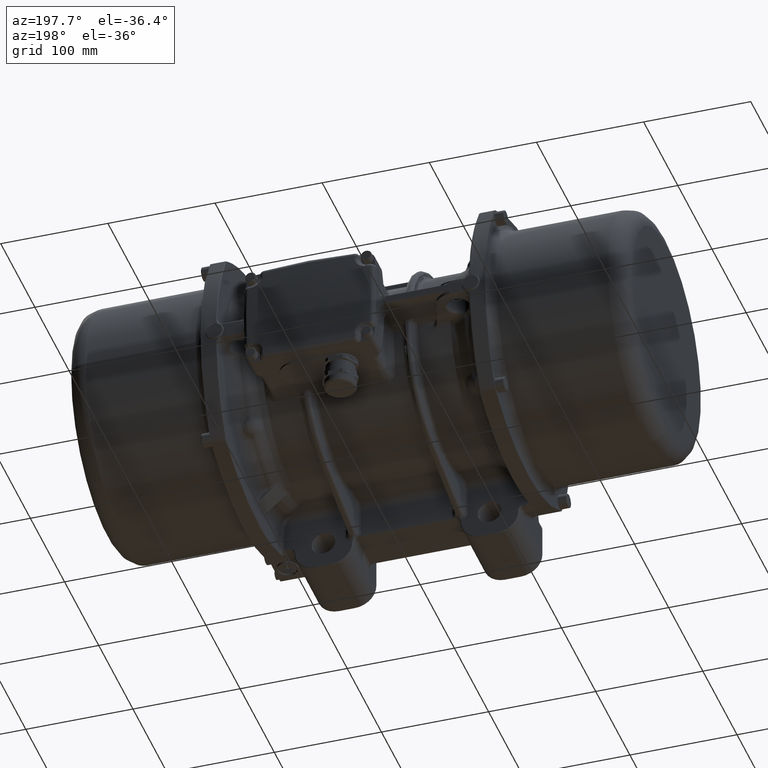
[diagram: clean part render]
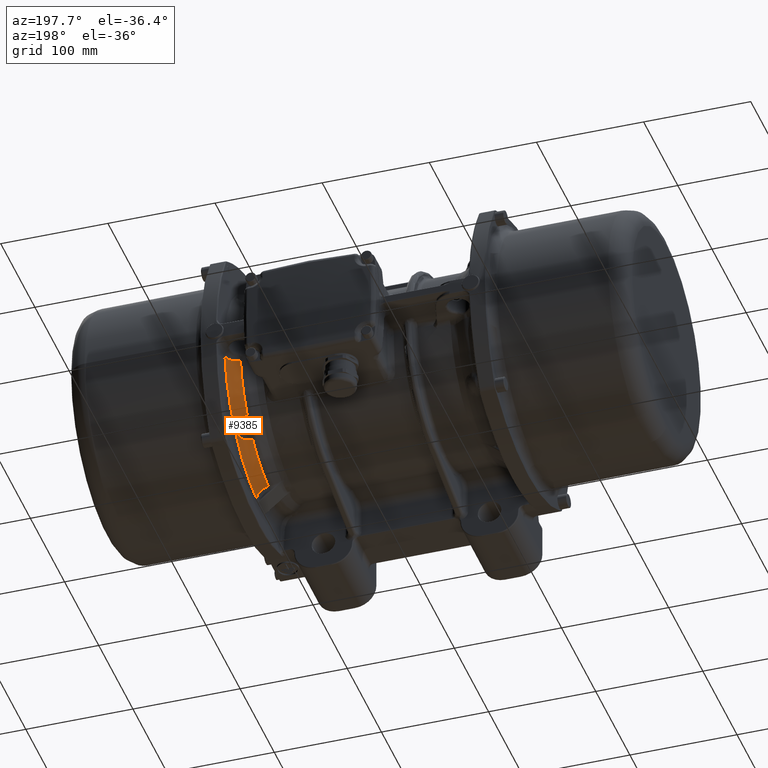
[diagram: same view with one face highlighted and labeled with its STEP entity id]
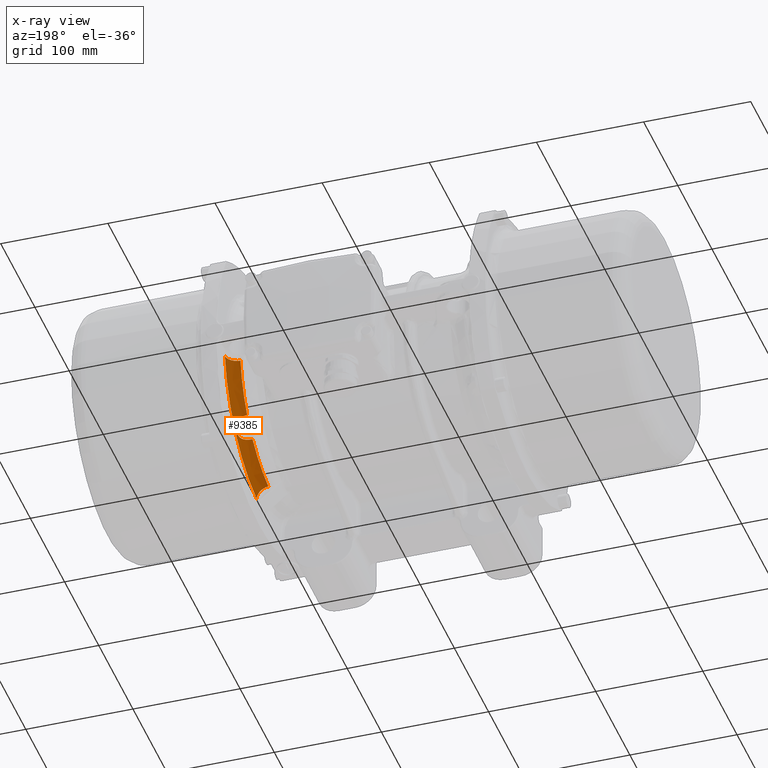
[diagram: x-ray of the same camera — body ghosted, the highlighted face saturated]
A machine part, auxiliary view. The second image highlights one B-rep face of the part: STEP entity #9385.
The next image is the same camera in x-ray: the body ghosted, the highlighted face saturated — about 0% of this face is hidden behind the body in this view.
In plain terms, the highlighted face is a freeform B-spline surface patch.
Its self-contained STEP definition (entity closure, byte-faithful):
#10 = CARTESIAN_POINT ( 'NONE',  ( 115.0456479404417700, 66.46062155296608900, -76.08826538670541600 ) ) ;
#258 = VERTEX_POINT ( 'NONE', #9233 ) ;
#457 = CARTESIAN_POINT ( 'NONE',  ( 115.9040696782029700, 75.30586149153745600, -70.07953721780532400 ) ) ;
#498 = CARTESIAN_POINT ( 'NONE',  ( 109.0507356617930000, 94.98679224000314000, -12.75717309216244300 ) ) ;
#907 = CARTESIAN_POINT ( 'NONE',  ( 114.4998661867531000, 76.09871464139669700, -65.12945061224995400 ) ) ;
#1000 = CARTESIAN_POINT ( 'NONE',  ( 112.9029520489821900, 12.71849838851724700, -97.47332232148070800 ) ) ;
#1030 = DIRECTION ( 'NONE',  ( 1.000000000000000000, -3.426983195025550000E-016, 3.449907649820270100E-016 ) ) ;
#1349 = CARTESIAN_POINT ( 'NONE',  ( 115.8159773696523900, 75.51223875635831500, -69.51453560806702100 ) ) ;
#1451 = CARTESIAN_POINT ( 'NONE',  ( 114.8485418307777300, 12.79970167566157200, -99.87997695500462200 ) ) ;
#1797 = CARTESIAN_POINT ( 'NONE',  ( 116.1286846105966800, 72.68183438664047500, -73.74755219628592300 ) ) ;
#1894 = CARTESIAN_POINT ( 'NONE',  ( 111.9064745477462400, 12.68849362960470900, -96.60101741402567700 ) ) ;
#2250 = CARTESIAN_POINT ( 'NONE',  ( 115.4845978186283400, 75.91837939330383700, -67.92162117050378400 ) ) ;
#2354 = CARTESIAN_POINT ( 'NONE',  ( 112.8011660623265400, 12.71523041802401700, -97.37743975008069700 ) ) ;
#3149 = CARTESIAN_POINT ( 'NONE',  ( 108.5661921338516400, 74.88426691733415900, -59.48584111913967800 ) ) ;
#3589 = CARTESIAN_POINT ( 'NONE',  ( 112.4445840359870100, 75.67944898417688600, -62.08229150764371000 ) ) ;
#3871 = CARTESIAN_POINT ( 'NONE',  ( 116.6169451523981000, 12.79673946402433200, -105.5014824129227700 ) ) ;
#4351 = CARTESIAN_POINT ( 'NONE',  ( 116.3517142660000300, 59.36961864100003100, -94.14424282999999600 ) ) ;
#5717 = CARTESIAN_POINT ( 'NONE',  ( 105.7689292740000000, 94.38267409899999900, -11.27281973399999900 ) ) ;
#7155 = CARTESIAN_POINT ( 'NONE',  ( 107.8305861490124000, 74.79846439196440100, -59.26712605697180400 ) ) ;
#8653 = CARTESIAN_POINT ( 'NONE',  ( 115.9107410099867400, 101.9913072709973400, -13.23260908792839700 ) ) ;
#8730 = CARTESIAN_POINT ( 'NONE',  ( 113.7364512477581300, 63.73093005205965500, -75.98192202396491300 ) ) ;
#9186 = CARTESIAN_POINT ( 'NONE',  ( 113.2391825537287800, 63.02468370926283800, -75.87024103704116800 ) ) ;
#9233 = CARTESIAN_POINT ( 'NONE',  ( 105.7689292740000000, 94.20100722612170300, -12.70180587100849900 ) ) ;
#9385 = ADVANCED_FACE ( 'NONE', ( #114690 ), #74656, .T. ) ;
#9627 = CARTESIAN_POINT ( 'NONE',  ( 111.6311279692499500, 61.31416971394009600, -75.48402992872522100 ) ) ;
#10341 = EDGE_CURVE ( 'NONE', #53316, #48273, #83132, .T. ) ;
#10458 = CARTESIAN_POINT ( 'NONE',  ( 115.6045230099685900, 101.2747133235855600, -13.18531699424875800 ) ) ;
#10537 = CARTESIAN_POINT ( 'NONE',  ( 115.2284033146832100, 67.01478379875706500, -76.04307589578520800 ) ) ;
#10982 = CARTESIAN_POINT ( 'NONE',  ( 116.0400102507984500, 71.26096751038066700, -74.73175961701545600 ) ) ;
#11414 = CARTESIAN_POINT ( 'NONE',  ( 116.1353157096312000, 72.96591495716712900, -73.49767353425228600 ) ) ;
#11515 = CARTESIAN_POINT ( 'NONE',  ( 109.7604735408195300, 12.64318762108856700, -95.31204990280504300 ) ) ;
#11856 = CARTESIAN_POINT ( 'NONE',  ( 116.0830747273647000, 71.76248018987408300, -74.43588583644491100 ) ) ;
#11966 = CARTESIAN_POINT ( 'NONE',  ( 115.5275435704971200, 101.1034935440168400, -13.17398092070036200 ) ) ;
#12126 = ORIENTED_EDGE ( 'NONE', *, *, #15796, .T. ) ;
#12323 = CARTESIAN_POINT ( 'NONE',  ( 113.0649028377313800, 75.82997643362097100, -62.78956955020834100 ) ) ;
#12787 = CARTESIAN_POINT ( 'NONE',  ( 116.1369596379381300, 73.10232394645569800, -73.36980607156178300 ) ) ;
#12888 = CARTESIAN_POINT ( 'NONE',  ( 112.4847631750245500, 12.70551229194114900, -97.09381825067716000 ) ) ;
#13775 = ORIENTED_EDGE ( 'NONE', *, *, #111830, .T. ) ;
#15099 = CARTESIAN_POINT ( 'NONE',  ( 112.3140086165103900, 75.64763920665737400, -61.94707864010315000 ) ) ;
#15396 = CARTESIAN_POINT ( 'NONE',  ( 105.7689292740000400, 56.32029078299995500, -89.30882921299998100 ) ) ;
#15796 = EDGE_CURVE ( 'NONE', #258, #39061, #39989, .T. ) ;
#15858 = CARTESIAN_POINT ( 'NONE',  ( 116.3517142660000300, 99.49279894800001500, -11.88315967999999300 ) ) ;
#15986 = CARTESIAN_POINT ( 'NONE',  ( 106.4652670272087400, 58.94879362432980900, -74.65085818842111100 ) ) ;
#16486 = ORIENTED_EDGE ( 'NONE', *, *, #20843, .T. ) ;
#17101 = CARTESIAN_POINT ( 'NONE',  ( 107.8305861490210000, 59.26712605695300300, -74.79846439194059800 ) ) ;
#18016 = CARTESIAN_POINT ( 'NONE',  ( 113.2218681613910400, 97.76114947514159300, -12.94947126412294500 ) ) ;
#18936 = AXIS2_PLACEMENT_3D ( 'NONE', #35655, #46678, #96163 ) ;
#19353 = CARTESIAN_POINT ( 'NONE',  ( 114.3823470132309400, 64.88647542289982100, -76.08728628665043900 ) ) ;
#19812 = CARTESIAN_POINT ( 'NONE',  ( 115.7050082373861400, 68.90639802454445800, -75.69689747697053400 ) ) ;
#19929 = VERTEX_POINT ( 'NONE', #68713 ) ;
#20122 = CARTESIAN_POINT ( 'NONE',  ( 113.3351847184647000, 97.87896002483996900, -12.95752156351152700 ) ) ;
#20252 = CARTESIAN_POINT ( 'NONE',  ( 116.6257580498605900, 105.6215036488068100, -13.46689872205086000 ) ) ;
#20303 = CARTESIAN_POINT ( 'NONE',  ( 109.8791257106602200, 95.35244552997791300, -12.78286229953410000 ) ) ;
#20843 = EDGE_CURVE ( 'NONE', #48273, #96684, #39225, .T. ) ;
#21184 = CARTESIAN_POINT ( 'NONE',  ( 111.7007138484684800, 61.37373603418107800, -75.50041732586858200 ) ) ;
#21623 = CARTESIAN_POINT ( 'NONE',  ( 115.3078947955768700, 76.01356188830277500, -67.27765442717463900 ) ) ;
#21727 = CARTESIAN_POINT ( 'NONE',  ( 113.4125820381888300, 12.73590020952160500, -97.98523871333767900 ) ) ;
#22071 = CARTESIAN_POINT ( 'NONE',  ( 116.1034895586763400, 72.08227644742979100, -74.21878658058568600 ) ) ;
#22175 = CARTESIAN_POINT ( 'NONE',  ( 114.0184017612664000, 12.75916234879119800, -98.67094717046180100 ) ) ;
#22525 = CARTESIAN_POINT ( 'NONE',  ( 113.5131553980552900, 75.93238769291923500, -63.40512799882363700 ) ) ;
#22969 = CARTESIAN_POINT ( 'NONE',  ( 116.0291251572772400, 74.82590182227699000, -71.11359842260135600 ) ) ;
#23072 = CARTESIAN_POINT ( 'NONE',  ( 109.4153425367976100, 12.63769527229597100, -95.15667830998729900 ) ) ;
#23438 = CARTESIAN_POINT ( 'NONE',  ( 116.0698723068012300, 74.53359168809726000, -71.60156810839258400 ) ) ;
#23543 = CARTESIAN_POINT ( 'NONE',  ( 115.0518277114143000, 12.81098922606386600, -100.2200440173094100 ) ) ;
#23724 = CARTESIAN_POINT ( 'NONE',  ( 116.3563244846530400, 12.91884511466556900, -103.5731635406066400 ) ) ;
#24641 = ORIENTED_EDGE ( 'NONE', *, *, #116565, .F. ) ;
#25252 = CARTESIAN_POINT ( 'NONE',  ( 111.8365374023650000, 75.53263512453459300, -61.49319085929423800 ) ) ;
#26003 = CARTESIAN_POINT ( 'NONE',  ( 112.0235396609999700, 94.97102148000000500, -11.34309040600000200 ) ) ;
#27930 = CARTESIAN_POINT ( 'NONE',  ( 107.1583178358346900, 59.06724295588807600, -74.72004969615912300 ) ) ;
#28391 = CARTESIAN_POINT ( 'NONE',  ( 105.7689292740021900, 58.91350817186379600, -74.59466595998678400 ) ) ;
#29914 = CARTESIAN_POINT ( 'NONE',  ( 113.0028461962766800, 97.54240352522734300, -12.93448585692373600 ) ) ;
#30818 = CARTESIAN_POINT ( 'NONE',  ( 114.4438493133447600, 65.01203154947465600, -76.09370081247432400 ) ) ;
#30862 = CARTESIAN_POINT ( 'NONE',  ( 106.4573115351743000, 94.26618886185966100, -12.70642068115462000 ) ) ;
#31214 = CARTESIAN_POINT ( 'NONE',  ( 116.3276153632473500, 103.3965828959224800, -13.32503900526645800 ) ) ;
#31727 = CARTESIAN_POINT ( 'NONE',  ( 113.0078745969952600, 62.72788506149516500, -75.81571262860788400 ) ) ;
#31765 = CARTESIAN_POINT ( 'NONE',  ( 109.4722441670434300, 95.16387790401022100, -12.76963580214426000 ) ) ;
#31830 = CARTESIAN_POINT ( 'NONE',  ( 109.3183448512002500, 12.63621588623633400, -95.11499643722555700 ) ) ;
#32171 = CARTESIAN_POINT ( 'NONE',  ( 115.5295766123950900, 75.88451203022039200, -68.10380367085255700 ) ) ;
#32271 = CARTESIAN_POINT ( 'NONE',  ( 112.4092689090385400, 12.70327555940107600, -97.02894738893013500 ) ) ;
#32605 = CARTESIAN_POINT ( 'NONE',  ( 115.3743934227063200, 75.98352403965208200, -67.50867925239411700 ) ) ;
#32619 = CARTESIAN_POINT ( 'NONE',  ( 113.2801233700984900, 97.82137108371992400, -12.95358794925820000 ) ) ;
#32712 = CARTESIAN_POINT ( 'NONE',  ( 115.1621384176689700, 12.81758014503848700, -100.4191544184815700 ) ) ;
#33056 = CARTESIAN_POINT ( 'NONE',  ( 116.1236974356189900, 72.53527995079720400, -73.86844604917394000 ) ) ;
#33524 = CARTESIAN_POINT ( 'NONE',  ( 115.7311565911732500, 69.04015691353268400, -75.65995820462693200 ) ) ;
#33621 = CARTESIAN_POINT ( 'NONE',  ( 109.3332417076720400, 12.63644149107896600, -95.12134783922556400 ) ) ;
#33803 = CARTESIAN_POINT ( 'NONE',  ( 116.2344376878094000, 12.90429581700630000, -103.1128774080502000 ) ) ;
#33977 = CARTESIAN_POINT ( 'NONE',  ( 115.7558101056249000, 69.17307313481313700, -75.62050430452340800 ) ) ;
#34596 = CARTESIAN_POINT ( 'NONE',  ( 107.8305861490210000, 59.26712605695300300, -74.79846439194059800 ) ) ;
#35347 = CARTESIAN_POINT ( 'NONE',  ( 112.0448483534000100, 75.58254778065688100, -61.68486588074299000 ) ) ;
#35655 = CARTESIAN_POINT ( 'NONE',  ( 105.7689292740000000, -3.785296728842090300E-010, -1.927746157148745100E-010 ) ) ;
#36087 = CARTESIAN_POINT ( 'NONE',  ( 116.6257580500000000, 11.92238120800000100, -105.8069762410000000 ) ) ;
#36538 = CARTESIAN_POINT ( 'NONE',  ( 116.6257580499999400, 99.61870566500003600, -63.75417448299997900 ) ) ;
#36646 = B_SPLINE_CURVE_WITH_KNOTS ( 'NONE', 3,
 ( #7155, #80606, #112235, #133759 ),
 .UNSPECIFIED., .F., .F.,
 ( 4, 4 ),
 ( 0.0000000000000000000, 1.000000000000000000 ),
 .UNSPECIFIED. ) ;
#36997 = CARTESIAN_POINT ( 'NONE',  ( 112.0235396610000200, 89.48572141499997200, -57.26924736400004400 ) ) ;
#39061 = VERTEX_POINT ( 'NONE', #20252 ) ;
#39225 = B_SPLINE_CURVE_WITH_KNOTS ( 'NONE', 3,
 ( #17101, #113783, #61533, #52355, #104651, #61983, #124339, #125223, #51012, #9627, #21184, #93665, #41372, #135314, #125692, #31727, #51459, #71604, #9186, #94113, #8730, #105102, #72488, #103311, #123889, #19353, #84011, #30818, #114699, #62897, #83566, #10, #73395, #92753, #10537, #134859, #51906, #42275, #72044, #82653, #62445, #104203, #19812, #33524, #33977, #84888, #94995, #43642, #117380, #65145, #86246, #106872, #52831, #10982, #116933, #63344, #11856, #22071, #33056, #1797, #11414, #12787, #85795, #63799, #115609, #127042, #127948, #64245, #23438, #74295, #22969, #75182, #53715, #457, #54632, #54170, #1349, #74739, #95425, #126143, #127491, #73857, #32171, #2250, #84442, #32605, #107322, #21623, #75654, #96805, #105533, #96339, #42740, #126585, #116045, #53269, #907, #105975, #43184, #64698, #44090, #116489, #85332, #22525, #95885, #106416, #12323, #107785, #3589, #15099, #77027, #35347, #129305, #25252, #88535, #45484, #55074, #3149, #88093 ),
 .UNSPECIFIED., .F., .F.,
 ( 4, 2, 2, 2, 2, 2, 2, 2, 2, 2, 2, 2, 1, 2, 2, 2, 2, 1, 1, 2, 2, 2, 2, 1, 2, 2, 2, 2, 1, 2, 2, 2, 2, 2, 2, 2, 2, 2, 2, 2, 1, 1, 2, 2, 2, 2, 1, 2, 2, 2, 2, 1, 2, 2, 2, 2, 2, 2, 2, 2, 2, 2, 2, 4 ),
 ( 0.0000000000000000000, 0.06250000000002019200, 0.09375000000003078100, 0.1093750000000364600, 0.1171875000000389700, 0.1250000000000414700, 0.1562500000000527100, 0.1718750000000578100, 0.1796875000000602000, 0.1875000000000625900, 0.2187500000000700000, 0.2343750000000740500, 0.2421875000000753600, 0.2460937500000754700, 0.2500000000000755500, 0.2812500000000814300, 0.2968750000000851500, 0.3046875000000869900, 0.3085937500000879900, 0.3105468750000880400, 0.3125000000000881500, 0.3437500000000965300, 0.3593750000001009700, 0.3671875000001026400, 0.3710937500001030300, 0.3750000000001033600, 0.4062500000001005300, 0.4218750000000986400, 0.4296875000000972600, 0.4335937500000973700, 0.4375000000000974200, 0.4687500000000954200, 0.4843750000000947600, 0.5000000000000940400, 0.5312500000000928100, 0.5468750000000925900, 0.5546875000000925900, 0.5625000000000925900, 0.5937500000000937000, 0.6093750000000940400, 0.6171875000000941500, 0.6210937500000940400, 0.6230468750000944800, 0.6250000000000949200, 0.6562500000000871500, 0.6718750000000837100, 0.6796875000000812700, 0.6835937500000804900, 0.6875000000000798300, 0.7187500000000720500, 0.7343750000000681700, 0.7421875000000657300, 0.7460937500000645000, 0.7500000000000632800, 0.7812500000000560700, 0.7968750000000525100, 0.8046875000000511800, 0.8125000000000497400, 0.8437500000000413000, 0.8593750000000376400, 0.8671875000000357500, 0.8750000000000337500, 0.9375000000000168800, 1.000000000000000000 ),
 .UNSPECIFIED. ) ;
#39907 = B_SPLINE_CURVE_WITH_KNOTS ( 'NONE', 3,
 ( #44385, #3871, #65886, #108063, #46187, #55363, #44835, #88366, #98467, #87459, #118131, #23724, #56718 ),
 .UNSPECIFIED., .F., .F.,
 ( 4, 2, 1, 1, 1, 2, 2, 4 ),
 ( 0.0000000000000000000, 0.2499999999999800700, 0.3749999999999694700, 0.4374999999999564200, 0.4687499999999499300, 0.4843749999999542000, 0.4999999999999585300, 1.000000000000000000 ),
 .UNSPECIFIED. ) ;
#39989 = B_SPLINE_CURVE_WITH_KNOTS ( 'NONE', 3,
 ( #63388, #30862, #114296, #113822, #51493, #498, #62481, #31765, #115651, #52872, #73892, #135791, #51049, #20303, #72978, #83599, #106599, #54801, #57510, #47433, #29914, #40488, #18016, #32619, #129317, #77518, #59142, #20122, #59492, #112207, #129498, #78586, #121203, #101998, #96448, #11966, #10458, #61918, #83042, #51396, #115540, #52285, #42203, #8653, #63277, #31214, #50933, #83487, #82580, #124268, #61456, #94046 ),
 .UNSPECIFIED., .F., .F.,
 ( 4, 2, 2, 2, 1, 1, 1, 2, 2, 2, 2, 2, 1, 1, 1, 1, 2, 2, 2, 2, 2, 1, 1, 1, 1, 1, 2, 2, 2, 2, 2, 4 ),
 ( 0.0000000000000000000, 0.1250000000002103000, 0.1875000000003166400, 0.2187500000003693700, 0.2343750000003941800, 0.2421875000004076500, 0.2460937500004128100, 0.2480468750004159200, 0.2500000000004190000, 0.3750000000004799500, 0.4375000000005104800, 0.4687500000005248600, 0.4843750000005319600, 0.4921875000005347400, 0.4960937500005345700, 0.4980468750005336300, 0.4990234375005339100, 0.5000000000005342400, 0.6250000000004166700, 0.6875000000003561600, 0.7187500000003245200, 0.7343750000003082000, 0.7421875000003013100, 0.7460937500002983200, 0.7480468750002968700, 0.7490234375002956500, 0.7495117187502945400, 0.7500000000002934300, 0.8125000000002201600, 0.8750000000001467700, 0.9375000000000733900, 1.000000000000000000 ),
 .UNSPECIFIED. ) ;
#40120 = CARTESIAN_POINT ( 'NONE',  ( 116.0687269963264000, 12.88576232291469200, -102.5310901934882400 ) ) ;
#40488 = CARTESIAN_POINT ( 'NONE',  ( 113.1046023287485800, 97.64208428953885700, -12.94132260070845900 ) ) ;
#41372 = CARTESIAN_POINT ( 'NONE',  ( 112.3232694777879200, 61.94929365967132600, -75.64998058362910200 ) ) ;
#41682 = AXIS2_PLACEMENT_3D ( 'NONE', #122727, #110404, #69081 ) ;
#42203 = CARTESIAN_POINT ( 'NONE',  ( 115.6781284281413300, 101.4444631603098200, -13.19653033020558500 ) ) ;
#42275 = CARTESIAN_POINT ( 'NONE',  ( 115.2688622111241700, 67.14688110532210900, -76.02885295002545300 ) ) ;
#42280 = ORIENTED_EDGE ( 'NONE', *, *, #92435, .T. ) ;
#42387 = CARTESIAN_POINT ( 'NONE',  ( 106.9463872012530700, 12.60801243124094200, -94.32614656896838300 ) ) ;
#42740 = CARTESIAN_POINT ( 'NONE',  ( 114.7748249885918500, 76.11037743069667300, -65.75009837381352900 ) ) ;
#43184 = CARTESIAN_POINT ( 'NONE',  ( 114.2956377426109100, 76.07987857793553100, -64.70342391662002500 ) ) ;
#43642 = CARTESIAN_POINT ( 'NONE',  ( 115.8514230505170000, 69.71296645295872500, -75.45043526981150700 ) ) ;
#44090 = CARTESIAN_POINT ( 'NONE',  ( 113.8268354104331100, 75.99863422134268400, -63.88314257038700800 ) ) ;
#44202 = CARTESIAN_POINT ( 'NONE',  ( 115.5085677144082700, 12.83984716796268600, -101.0980738960668800 ) ) ;
#44385 = CARTESIAN_POINT ( 'NONE',  ( 116.6257580500020100, 12.76241829497562100, -105.7089403701842100 ) ) ;
#44835 = CARTESIAN_POINT ( 'NONE',  ( 116.5155206114362600, 12.89263494355273000, -104.5028983890356900 ) ) ;
#45484 = CARTESIAN_POINT ( 'NONE',  ( 110.5953963859886500, 75.24640598411544100, -60.50955121441634800 ) ) ;
#45735 = AXIS2_PLACEMENT_3D ( 'NONE', #106554, #1030, #95571 ) ;
#46187 = CARTESIAN_POINT ( 'NONE',  ( 116.5543637801906300, 12.87359067084556800, -104.7973067579160200 ) ) ;
#46678 = DIRECTION ( 'NONE',  ( 1.000000000000000000, -3.426983195025550000E-016, 3.449907649820270100E-016 ) ) ;
#46739 = CARTESIAN_POINT ( 'NONE',  ( 105.7689292740000000, 12.60397677399866200, -94.21414651869560000 ) ) ;
#47433 = CARTESIAN_POINT ( 'NONE',  ( 112.7978167195530500, 97.34623618756612000, -12.92101549990017700 ) ) ;
#48273 = VERTEX_POINT ( 'NONE', #34596 ) ;
#48853 = CARTESIAN_POINT ( 'NONE',  ( 116.1573921100623500, 12.89509909480434900, -102.8219270204477600 ) ) ;
#50933 = CARTESIAN_POINT ( 'NONE',  ( 116.4107914228665900, 103.7981107715350200, -13.35109355900759600 ) ) ;
#51012 = CARTESIAN_POINT ( 'NONE',  ( 111.4881921979812200, 61.19508792799617000, -75.45067232533618600 ) ) ;
#51049 = CARTESIAN_POINT ( 'NONE',  ( 109.8677139787850800, 95.34691252052215300, -12.78247496855376200 ) ) ;
#51396 = CARTESIAN_POINT ( 'NONE',  ( 115.6705943044634600, 101.4268030982194500, -13.19536496080862300 ) ) ;
#51459 = CARTESIAN_POINT ( 'NONE',  ( 113.0668673377792600, 62.80162482890796800, -75.82975053748256800 ) ) ;
#51493 = CARTESIAN_POINT ( 'NONE',  ( 108.5396832715709900, 94.79369680841392700, -12.74355712568224400 ) ) ;
#51656 = ORIENTED_EDGE ( 'NONE', *, *, #84959, .T. ) ;
#51906 = CARTESIAN_POINT ( 'NONE',  ( 115.2624608765040500, 67.12577550240767700, -76.03119903056178000 ) ) ;
#52285 = CARTESIAN_POINT ( 'NONE',  ( 115.6772665817633600, 101.4424407640633900, -13.19639688391433600 ) ) ;
#52355 = CARTESIAN_POINT ( 'NONE',  ( 110.2680542558826700, 60.32933447586034200, -75.18452418408938300 ) ) ;
#52831 = CARTESIAN_POINT ( 'NONE',  ( 116.0285561846485200, 71.13678204221162100, -74.80193440289629300 ) ) ;
#52872 = CARTESIAN_POINT ( 'NONE',  ( 109.7434354188036600, 95.28746402409552700, -12.77831066878291600 ) ) ;
#53269 = CARTESIAN_POINT ( 'NONE',  ( 114.5410735248992900, 76.10186480191097800, -65.21776630305613800 ) ) ;
#53316 = VERTEX_POINT ( 'NONE', #128504 ) ;
#53368 = CARTESIAN_POINT ( 'NONE',  ( 112.6490083986965900, 12.71049113962361500, -97.23885819976604200 ) ) ;
#53715 = CARTESIAN_POINT ( 'NONE',  ( 115.9283864889053600, 75.23291902224797000, -70.25623775735812200 ) ) ;
#54170 = CARTESIAN_POINT ( 'NONE',  ( 115.8425029368019200, 75.45765360549448500, -69.67461723289413600 ) ) ;
#54273 = CARTESIAN_POINT ( 'NONE',  ( 114.7845956682419500, 12.79629536098067500, -99.77732269074243700 ) ) ;
#54632 = CARTESIAN_POINT ( 'NONE',  ( 115.8636785207333300, 75.40823012876990100, -69.81028979120432600 ) ) ;
#54801 = CARTESIAN_POINT ( 'NONE',  ( 112.2380201225945900, 96.85308395102286700, -12.88702866927673300 ) ) ;
#55074 = CARTESIAN_POINT ( 'NONE',  ( 109.2736487443677000, 74.99643305433815500, -59.78133684904402400 ) ) ;
#55363 = CARTESIAN_POINT ( 'NONE',  ( 116.5292391394866300, 12.88691909474360600, -104.6015504952851500 ) ) ;
#56718 = CARTESIAN_POINT ( 'NONE',  ( 116.2344376878094000, 12.90429581700630000, -103.1128774080502000 ) ) ;
#57510 = CARTESIAN_POINT ( 'NONE',  ( 112.6591078575383300, 97.21971924051898400, -12.91230643836823900 ) ) ;
#57628 = CARTESIAN_POINT ( 'NONE',  ( 112.0235396609999700, 10.70966417599999900, -95.04453542499995000 ) ) ;
#58065 = CARTESIAN_POINT ( 'NONE',  ( 116.3517142660000300, 93.74633178300010200, -59.99596113700002300 ) ) ;
#58295 = ORIENTED_EDGE ( 'NONE', *, *, #98433, .T. ) ;
#58516 = CARTESIAN_POINT ( 'NONE',  ( 116.6257580499999400, 63.08859720000001700, -100.0415423000000300 ) ) ;
#59142 = CARTESIAN_POINT ( 'NONE',  ( 113.3298518538214900, 97.87335348003138300, -12.95713874404542300 ) ) ;
#59492 = CARTESIAN_POINT ( 'NONE',  ( 113.7139588533152500, 98.27763716019644800, -12.98474135642633000 ) ) ;
#60017 = CARTESIAN_POINT ( 'NONE',  ( 107.8305861490210000, 59.26712605695300300, -74.79846439194059800 ) ) ;
#61195 = CARTESIAN_POINT ( 'NONE',  ( 115.7523907006926900, 12.85791883925151100, -101.6651214887061300 ) ) ;
#61456 = CARTESIAN_POINT ( 'NONE',  ( 116.6194523656802900, 105.4770778934226600, -13.45774316401846700 ) ) ;
#61533 = CARTESIAN_POINT ( 'NONE',  ( 109.2755756366998000, 59.78214492947216700, -74.99673876585298200 ) ) ;
#61918 = CARTESIAN_POINT ( 'NONE',  ( 115.6424288836742100, 101.3613632643896700, -13.19104417543177000 ) ) ;
#61983 = CARTESIAN_POINT ( 'NONE',  ( 111.0465003997461800, 60.85182207419362800, -75.35016660421511900 ) ) ;
#62445 = CARTESIAN_POINT ( 'NONE',  ( 115.6115325086411500, 68.45729811155688100, -75.81003660440855200 ) ) ;
#62481 = CARTESIAN_POINT ( 'NONE',  ( 109.2201023812268500, 95.05521805786189300, -12.76199433371752100 ) ) ;
#62897 = CARTESIAN_POINT ( 'NONE',  ( 114.7804194893942500, 65.75429766876232000, -76.11382331494954200 ) ) ;
#63277 = CARTESIAN_POINT ( 'NONE',  ( 116.0776560780406000, 102.4933338048261600, -13.26581788374491700 ) ) ;
#63344 = CARTESIAN_POINT ( 'NONE',  ( 116.0509023833151200, 71.38337116634282600, -74.66105131787257700 ) ) ;
#63388 = CARTESIAN_POINT ( 'NONE',  ( 105.7689292740000000, 94.20100722612170300, -12.70180587100849900 ) ) ;
#63449 = CARTESIAN_POINT ( 'NONE',  ( 112.5730593854889700, 12.70816210282336600, -97.17087758574990600 ) ) ;
#63799 = CARTESIAN_POINT ( 'NONE',  ( 116.1305681046803100, 73.75530096276001800, -72.68324188010974800 ) ) ;
#63902 = CARTESIAN_POINT ( 'NONE',  ( 112.4218397739144100, 12.70364637351011800, -97.03969102149989100 ) ) ;
#64087 = CARTESIAN_POINT ( 'NONE',  ( 105.7689292740021900, 74.59466595994729200, -58.91350817194519600 ) ) ;
#64245 = CARTESIAN_POINT ( 'NONE',  ( 116.0818582031835100, 74.43061261000561000, -71.76307874639474000 ) ) ;
#64698 = CARTESIAN_POINT ( 'NONE',  ( 114.1181769681526400, 76.05310059519212000, -64.37103859994930100 ) ) ;
#64796 = CARTESIAN_POINT ( 'NONE',  ( 109.9577879193157300, 12.64658114574331700, -95.40849326529571800 ) ) ;
#65145 = CARTESIAN_POINT ( 'NONE',  ( 115.9698208931359700, 70.58757097893833100, -75.08284224193224100 ) ) ;
#65886 = CARTESIAN_POINT ( 'NONE',  ( 116.6027766203692600, 12.82511993154847800, -105.2888319893857000 ) ) ;
#68157 = CARTESIAN_POINT ( 'NONE',  ( 105.7689292740000000, 10.64331759200000100, -94.45573262300000300 ) ) ;
#68713 = CARTESIAN_POINT ( 'NONE',  ( 116.6257580500020100, 12.76241829497562100, -105.7089403701842100 ) ) ;
#69081 = DIRECTION ( 'NONE',  ( 0.0000000000000000000, 0.0000000000000000000, -1.000000000000000000 ) ) ;
#71604 = CARTESIAN_POINT ( 'NONE',  ( 113.1830205698525300, 62.95069972830713600, -75.85712976005002900 ) ) ;
#72044 = CARTESIAN_POINT ( 'NONE',  ( 115.3880611518583200, 67.54299599172915700, -75.98369760895721500 ) ) ;
#72488 = CARTESIAN_POINT ( 'NONE',  ( 114.1207709333393700, 64.38502707845896100, -76.05183504113941200 ) ) ;
#72978 = CARTESIAN_POINT ( 'NONE',  ( 110.4805332853054000, 95.64500635406409400, -12.80333924934851500 ) ) ;
#73395 = CARTESIAN_POINT ( 'NONE',  ( 115.1357564551873500, 66.72644077922784300, -76.06920144507108700 ) ) ;
#73857 = CARTESIAN_POINT ( 'NONE',  ( 115.6552405529669900, 75.76995214782522200, -68.64643759544674100 ) ) ;
#73892 = CARTESIAN_POINT ( 'NONE',  ( 109.8159902743994400, 95.32198936284544300, -12.78072973067078300 ) ) ;
#74295 = CARTESIAN_POINT ( 'NONE',  ( 116.0632553188706300, 74.58497810893644000, -71.51813496947470100 ) ) ;
#74398 = CARTESIAN_POINT ( 'NONE',  ( 110.3519718957023600, 12.65367737030926800, -95.61034777056333700 ) ) ;
#74656 =( BOUNDED_SURFACE ( )  B_SPLINE_SURFACE ( 3, 3, ( 
 ( #5717, #100278, #15396, #68157 ),
 ( #26003, #36997, #100729, #57628 ),
 ( #15858, #58065, #4351, #109450 ),
 ( #130957, #36538, #58516, #36087 ) ),
 .UNSPECIFIED., .F., .F., .F. ) 
 B_SPLINE_SURFACE_WITH_KNOTS ( ( 4, 4 ),
 ( 4, 4 ),
 ( 0.0000000000000000000, 1.000000000000000000 ),
 ( 0.0000000000000000000, 1.000000000000000000 ),
 .UNSPECIFIED. ) 
 GEOMETRIC_REPRESENTATION_ITEM ( )  RATIONAL_B_SPLINE_SURFACE ( (
 ( 1.000000000000000000, 0.8559401237527419800, 0.8559401237527419800, 1.000000000000000000),
 ( 0.8361360748242580000, 0.7156824153592069600, 0.7156824153592069600, 0.8361360748242580000),
 ( 0.8361360748242580000, 0.7156824153592069600, 0.7156824153592069600, 0.8361360748242580000),
 ( 1.000000000000000000, 0.8559401237527419800, 0.8559401237527419800, 1.000000000000000000) ) ) 
 REPRESENTATION_ITEM ( '' )  SURFACE ( )  );
#74739 = CARTESIAN_POINT ( 'NONE',  ( 115.8042071152568900, 75.53497434209093300, -69.44554852852728300 ) ) ;
#75182 = CARTESIAN_POINT ( 'NONE',  ( 115.9943738575521800, 74.99999380364708700, -70.77762799473704500 ) ) ;
#75654 = CARTESIAN_POINT ( 'NONE',  ( 115.2938198929747100, 76.01931437273502500, -67.22999527829340100 ) ) ;
#75751 = CARTESIAN_POINT ( 'NONE',  ( 114.7889023184468200, 12.79652281793379100, -99.78417907112205400 ) ) ;
#75777 = CIRCLE ( 'NONE', #45735, 95.05348828313430000 ) ;
#77027 = CARTESIAN_POINT ( 'NONE',  ( 112.1128055381683300, 75.59894326895887700, -61.74973465657007000 ) ) ;
#77518 = CARTESIAN_POINT ( 'NONE',  ( 113.3215757606464100, 97.86466865347672700, -12.95654566168301600 ) ) ;
#78586 = CARTESIAN_POINT ( 'NONE',  ( 114.9364820598692200, 99.97435865236956000, -13.09867223584336500 ) ) ;
#79132 = EDGE_LOOP ( 'NONE', ( #58295, #12126, #24641, #97033, #42280, #13775, #129184, #16486, #51656 ) ) ;
#80073 = EDGE_CURVE ( 'NONE', #19929, #81934, #39907, .T. ) ;
#80606 = CARTESIAN_POINT ( 'NONE',  ( 107.1583160480878500, 74.72004948777564000, -59.06724242446688300 ) ) ;
#81934 = VERTEX_POINT ( 'NONE', #33803 ) ;
#82580 = CARTESIAN_POINT ( 'NONE',  ( 116.5632942909260700, 104.7926784265036600, -13.41469332147631600 ) ) ;
#82653 = CARTESIAN_POINT ( 'NONE',  ( 115.4849371191992700, 67.91186726987471900, -75.92472277408859300 ) ) ;
#83042 = CARTESIAN_POINT ( 'NONE',  ( 115.6612312980760000, 101.4049468415875700, -13.19392229872361500 ) ) ;
#83132 = B_SPLINE_CURVE_WITH_KNOTS ( 'NONE', 3,
 ( #28391, #15986, #27930, #60017 ),
 .UNSPECIFIED., .F., .F.,
 ( 4, 4 ),
 ( 0.0000000000000000000, 1.000000000000000000 ),
 .UNSPECIFIED. ) ;
#83487 = CARTESIAN_POINT ( 'NONE',  ( 116.5286342637373200, 104.4960492659286800, -13.39590628722177500 ) ) ;
#83566 = CARTESIAN_POINT ( 'NONE',  ( 114.9821305092018800, 66.28369622259485500, -76.09728328767894800 ) ) ;
#83599 = CARTESIAN_POINT ( 'NONE',  ( 111.0774208347199400, 95.99593046183598200, -12.82768450117422700 ) ) ;
#84011 = CARTESIAN_POINT ( 'NONE',  ( 114.4238591711013700, 64.97085001496330400, -76.09171400721670900 ) ) ;
#84442 = CARTESIAN_POINT ( 'NONE',  ( 115.4119858700049100, 75.96286178989493000, -67.64661497788519300 ) ) ;
#84888 = CARTESIAN_POINT ( 'NONE',  ( 115.7719225488323800, 69.26149316466892000, -75.59364133324416500 ) ) ;
#84959 = EDGE_CURVE ( 'NONE', #96684, #123720, #36646, .T. ) ;
#84993 = CARTESIAN_POINT ( 'NONE',  ( 109.5303393805829900, 12.63948486153464000, -95.20720641703457000 ) ) ;
#85332 = CARTESIAN_POINT ( 'NONE',  ( 113.5670643927831700, 75.94420365115453800, -63.48404219876263700 ) ) ;
#85429 = CARTESIAN_POINT ( 'NONE',  ( 109.3660789024822900, 12.63694129015004800, -95.13542647133591900 ) ) ;
#85795 = CARTESIAN_POINT ( 'NONE',  ( 116.1369533980548700, 73.50452077510334400, -72.96757601889095200 ) ) ;
#86246 = CARTESIAN_POINT ( 'NONE',  ( 115.9895028469838400, 70.75844864211663300, -75.00040658343819200 ) ) ;
#86355 = CARTESIAN_POINT ( 'NONE',  ( 112.4043647564857200, 12.70313107393273300, -97.02476239694239300 ) ) ;
#87459 = CARTESIAN_POINT ( 'NONE',  ( 116.5028855922246300, 12.89712171088232000, -104.4162123036890600 ) ) ;
#88093 = CARTESIAN_POINT ( 'NONE',  ( 107.8305861490124000, 74.79846439196440100, -59.26712605697180400 ) ) ;
#88366 = CARTESIAN_POINT ( 'NONE',  ( 116.5093890366448500, 12.89488189045991700, -104.4604548034037100 ) ) ;
#88535 = CARTESIAN_POINT ( 'NONE',  ( 111.2095679437510000, 75.38394193296861100, -60.94210869621852600 ) ) ;
#91209 = CIRCLE ( 'NONE', #18936, 95.05348828313430000 ) ;
#92435 = EDGE_CURVE ( 'NONE', #81934, #104355, #131023, .T. ) ;
#92753 = CARTESIAN_POINT ( 'NONE',  ( 115.1795187826582100, 66.85945864617134800, -76.05828591884244400 ) ) ;
#92853 = CARTESIAN_POINT ( 'NONE',  ( 115.6924186884259900, 12.85327109429382600, -101.5199811987229000 ) ) ;
#93665 = CARTESIAN_POINT ( 'NONE',  ( 112.0543902433531800, 61.68497152600945600, -75.58432500681269100 ) ) ;
#94046 = CARTESIAN_POINT ( 'NONE',  ( 116.6257580498605900, 105.6215036488068100, -13.46689872205086000 ) ) ;
#94113 = CARTESIAN_POINT ( 'NONE',  ( 113.5254066517639700, 63.41199090695394600, -75.93617967251496700 ) ) ;
#94995 = CARTESIAN_POINT ( 'NONE',  ( 115.7795710483682800, 69.30420760680695500, -75.58037474407979100 ) ) ;
#95425 = CARTESIAN_POINT ( 'NONE',  ( 115.7962695603174800, 75.54998528908670600, -69.39947304652400800 ) ) ;
#95528 = CARTESIAN_POINT ( 'NONE',  ( 108.1527527235255000, 12.61867071092858200, -94.62141922912572100 ) ) ;
#95571 = DIRECTION ( 'NONE',  ( 2.919995480118922800E-016, 0.0000000000000000000, -1.000000000000000000 ) ) ;
#95885 = CARTESIAN_POINT ( 'NONE',  ( 113.4031316695734000, 75.90780516455292600, -63.24836621387983400 ) ) ;
#96163 = DIRECTION ( 'NONE',  ( 2.919995480118922800E-016, 0.0000000000000000000, -1.000000000000000000 ) ) ;
#96339 = CARTESIAN_POINT ( 'NONE',  ( 114.8468083949909000, 76.10838889006467400, -65.92852283049335000 ) ) ;
#96442 = CARTESIAN_POINT ( 'NONE',  ( 111.3945241644545100, 12.67555917642235600, -96.23355780519580100 ) ) ;
#96448 = CARTESIAN_POINT ( 'NONE',  ( 115.4596847081615700, 100.9603363181614400, -13.16447377018325900 ) ) ;
#96684 = VERTEX_POINT ( 'NONE', #109417 ) ;
#96805 = CARTESIAN_POINT ( 'NONE',  ( 115.1723101774077000, 76.06599459423456700, -66.82483886025447400 ) ) ;
#97033 = ORIENTED_EDGE ( 'NONE', *, *, #80073, .T. ) ;
#98433 = EDGE_CURVE ( 'NONE', #123720, #258, #91209, .T. ) ;
#98467 = CARTESIAN_POINT ( 'NONE',  ( 116.5052447781659500, 12.89633486917040300, -104.4321228113785900 ) ) ;
#100278 = CARTESIAN_POINT ( 'NONE',  ( 105.7689292740000400, 88.93135557700003300, -56.91446322899994900 ) ) ;
#100729 = CARTESIAN_POINT ( 'NONE',  ( 112.0235396610000200, 56.67137106200001300, -89.86554808500007100 ) ) ;
#101155 = CARTESIAN_POINT ( 'NONE',  ( 116.2344376878094000, 12.90429581700630000, -103.1128774080502000 ) ) ;
#101998 = CARTESIAN_POINT ( 'NONE',  ( 115.3217976732223800, 100.6789022297773500, -13.14575383510344700 ) ) ;
#103311 = CARTESIAN_POINT ( 'NONE',  ( 114.2541623087342400, 64.63473359228930800, -76.07135131617501100 ) ) ;
#104203 = CARTESIAN_POINT ( 'NONE',  ( 115.6506061505664200, 68.63780164360233000, -75.76744599624075200 ) ) ;
#104355 = VERTEX_POINT ( 'NONE', #46739 ) ;
#104651 = CARTESIAN_POINT ( 'NONE',  ( 110.5873082454800200, 60.52885831173264100, -75.25022160672710900 ) ) ;
#105102 = CARTESIAN_POINT ( 'NONE',  ( 114.0278335054010900, 64.22014878792725800, -76.03615013602609500 ) ) ;
#105203 = CARTESIAN_POINT ( 'NONE',  ( 114.9172546047235000, 12.80343728738262300, -99.99251330820139600 ) ) ;
#105533 = CARTESIAN_POINT ( 'NONE',  ( 115.0512852527434700, 76.09161612398617100, -66.46520035419821700 ) ) ;
#105975 = CARTESIAN_POINT ( 'NONE',  ( 114.4781206451396500, 76.09685982183445700, -65.08352863488097700 ) ) ;
#106070 = CARTESIAN_POINT ( 'NONE',  ( 113.2085367234987400, 12.72865508729004700, -97.77179666987383700 ) ) ;
#106416 = CARTESIAN_POINT ( 'NONE',  ( 113.3460045639169400, 75.89480512416015800, -63.16915160495479900 ) ) ;
#106554 = CARTESIAN_POINT ( 'NONE',  ( 105.7689292740000000, -3.785296728842090300E-010, -1.927746157148745100E-010 ) ) ;
#106599 = CARTESIAN_POINT ( 'NONE',  ( 111.9506931898203300, 96.62591479238072600, -12.87131427986466500 ) ) ;
#106872 = CARTESIAN_POINT ( 'NONE',  ( 116.0160371276088100, 71.01125568428969400, -74.86932893410804000 ) ) ;
#106967 = CARTESIAN_POINT ( 'NONE',  ( 112.4407028755589700, 12.70420373496755100, -97.05584599041650100 ) ) ;
#107322 = CARTESIAN_POINT ( 'NONE',  ( 115.3347716342272900, 76.00185483477606900, -67.37014132495291100 ) ) ;
#107785 = CARTESIAN_POINT ( 'NONE',  ( 112.8254671477698300, 75.77204018844743400, -62.49833559921073300 ) ) ;
#108063 = CARTESIAN_POINT ( 'NONE',  ( 116.5720768959950400, 12.85889866277658400, -104.9623908782443900 ) ) ;
#109417 = CARTESIAN_POINT ( 'NONE',  ( 107.8305861490124000, 74.79846439196440100, -59.26712605697180400 ) ) ;
#109450 = CARTESIAN_POINT ( 'NONE',  ( 116.3517142660000300, 11.21957464599999600, -99.56981305300001800 ) ) ;
#110404 = DIRECTION ( 'NONE',  ( 1.000000000000000000, 0.0000000000000000000, 0.0000000000000000000 ) ) ;
#111830 = EDGE_CURVE ( 'NONE', #104355, #53316, #75777, .T. ) ;
#112207 = CARTESIAN_POINT ( 'NONE',  ( 114.1252147336017500, 98.76389223488527600, -13.01740005972378700 ) ) ;
#112235 = CARTESIAN_POINT ( 'NONE',  ( 106.4652652830397800, 74.65085804783018400, -58.94879353607250000 ) ) ;
#113448 = CARTESIAN_POINT ( 'NONE',  ( 115.9179628515547900, 12.87179990187884800, -102.0970184989848400 ) ) ;
#113783 = CARTESIAN_POINT ( 'NONE',  ( 108.5671936401795300, 59.48613889312374400, -74.88438373501938400 ) ) ;
#113822 = CARTESIAN_POINT ( 'NONE',  ( 108.1950491642207900, 94.68123520194507100, -12.73561404090982500 ) ) ;
#114296 = CARTESIAN_POINT ( 'NONE',  ( 107.1562263515306900, 94.39282201669669800, -12.71527443762088800 ) ) ;
#114690 = FACE_OUTER_BOUND ( 'NONE', #79132, .T. ) ;
#114699 = CARTESIAN_POINT ( 'NONE',  ( 114.6310598576794500, 65.40318057245977500, -76.11079752650522300 ) ) ;
#115540 = CARTESIAN_POINT ( 'NONE',  ( 115.6745987745119400, 101.4361838598185000, -13.19598401251729800 ) ) ;
#115609 = CARTESIAN_POINT ( 'NONE',  ( 116.1108294347305500, 74.10471947915944200, -72.23331994855864500 ) ) ;
#115651 = CARTESIAN_POINT ( 'NONE',  ( 109.5978380123573900, 95.21971247849626300, -12.77355884507301000 ) ) ;
#115714 = CARTESIAN_POINT ( 'NONE',  ( 105.7689292740000000, 12.60397677399866200, -94.21414651869560000 ) ) ;
#116045 = CARTESIAN_POINT ( 'NONE',  ( 114.6020747528124100, 76.10599431523751000, -65.35039614063927600 ) ) ;
#116148 = CARTESIAN_POINT ( 'NONE',  ( 114.7988850363756400, 12.79705124411147700, -99.80010669637940200 ) ) ;
#116489 = CARTESIAN_POINT ( 'NONE',  ( 113.7255339156603800, 75.97810233985220000, -63.72229491270686500 ) ) ;
#116565 = EDGE_CURVE ( 'NONE', #19929, #39061, #127196, .T. ) ;
#116583 = CARTESIAN_POINT ( 'NONE',  ( 115.3756724875886900, 12.83086073084269100, -100.8224447780045200 ) ) ;
#116933 = CARTESIAN_POINT ( 'NONE',  ( 116.0474154033128100, 71.34345714017104000, -74.68435912109596600 ) ) ;
#117380 = CARTESIAN_POINT ( 'NONE',  ( 115.9040994896652000, 70.06820382759708800, -75.31529442002728600 ) ) ;
#118131 = CARTESIAN_POINT ( 'NONE',  ( 116.4411711739544300, 12.91687841349307700, -104.0045113959833000 ) ) ;
#121203 = CARTESIAN_POINT ( 'NONE',  ( 115.2269823321139800, 100.4977937074677500, -13.13366733502035400 ) ) ;
#122727 = CARTESIAN_POINT ( 'NONE',  ( 116.6257580500211900, 1.615166334012485000E-010, -9.117966798255489400E-011 ) ) ;
#123720 = VERTEX_POINT ( 'NONE', #64087 ) ;
#123889 = CARTESIAN_POINT ( 'NONE',  ( 114.3193547904971400, 64.76018449129431100, -76.08010731777893900 ) ) ;
#123985 = CARTESIAN_POINT ( 'NONE',  ( 115.8647501001782700, 12.86715311723323300, -101.9526931841960600 ) ) ;
#124268 = CARTESIAN_POINT ( 'NONE',  ( 116.6087278368745500, 105.2831286260021200, -13.44560359590313500 ) ) ;
#124339 = CARTESIAN_POINT ( 'NONE',  ( 111.1962916394790300, 60.96342053501663800, -75.38371125834618200 ) ) ;
#125223 = CARTESIAN_POINT ( 'NONE',  ( 111.4158568503504900, 61.13646526846403600, -75.43394282221804300 ) ) ;
#125692 = CARTESIAN_POINT ( 'NONE',  ( 112.8281475307411900, 62.50912698928765100, -75.77266145912764700 ) ) ;
#126143 = CARTESIAN_POINT ( 'NONE',  ( 115.7920399427255900, 75.55780828741029600, -69.37516614413442500 ) ) ;
#126585 = CARTESIAN_POINT ( 'NONE',  ( 114.6606855100159100, 76.10829844855403800, -65.48346299855009500 ) ) ;
#126685 = CARTESIAN_POINT ( 'NONE',  ( 110.6141772389140100, 12.65882256707267000, -95.75688804513735900 ) ) ;
#127042 = CARTESIAN_POINT ( 'NONE',  ( 116.1025441643357100, 74.21673444920557500, -72.07944309839940900 ) ) ;
#127196 = CIRCLE ( 'NONE', #41682, 106.4765673517520100 ) ;
#127491 = CARTESIAN_POINT ( 'NONE',  ( 115.7266801116852800, 75.67627870602015600, -69.00296011884411500 ) ) ;
#127600 = CARTESIAN_POINT ( 'NONE',  ( 114.4140424397818900, 12.77678541805658700, -99.18915721390556000 ) ) ;
#127948 = CARTESIAN_POINT ( 'NONE',  ( 116.0873731607872900, 74.37798899696738900, -71.84288734513785400 ) ) ;
#128043 = CARTESIAN_POINT ( 'NONE',  ( 114.8138343290852000, 12.79784469536556000, -99.82402065290776200 ) ) ;
#128504 = CARTESIAN_POINT ( 'NONE',  ( 105.7689292740021900, 58.91350817186379600, -74.59466595998678400 ) ) ;
#129184 = ORIENTED_EDGE ( 'NONE', *, *, #10341, .T. ) ;
#129305 = CARTESIAN_POINT ( 'NONE',  ( 111.9071747188328300, 75.54950290165432100, -61.55699868220970900 ) ) ;
#129317 = CARTESIAN_POINT ( 'NONE',  ( 113.3091546373248700, 97.85165365542430000, -12.95565678200215000 ) ) ;
#129498 = CARTESIAN_POINT ( 'NONE',  ( 114.7347953382669800, 99.65201202447947500, -13.07704075080780700 ) ) ;
#130957 = CARTESIAN_POINT ( 'NONE',  ( 116.6257580500000000, 105.7251378879999900, -12.62753394200000100 ) ) ;
#131023 = B_SPLINE_CURVE_WITH_KNOTS ( 'NONE', 3,
 ( #101155, #48853, #40120, #113448, #123985, #61195, #92853, #44202, #116583, #32712, #23543, #105203, #1451, #128043, #116148, #75751, #54273, #127600, #22175, #21727, #106070, #1000, #2354, #53368, #63449, #12888, #106967, #63902, #32271, #86355, #1894, #96442, #126685, #74398, #64796, #11515, #84993, #23072, #85429, #33621, #31830, #95528, #42387, #115714 ),
 .UNSPECIFIED., .F., .F.,
 ( 4, 2, 2, 2, 2, 1, 1, 1, 1, 2, 2, 2, 2, 2, 1, 1, 1, 2, 2, 2, 2, 1, 1, 1, 2, 2, 4 ),
 ( 0.0000000000000000000, 0.06250000000009139900, 0.09375000000013709900, 0.1250000000001828000, 0.1875000000002779200, 0.2187500000003261600, 0.2343750000003502800, 0.2421875000003615700, 0.2460937500003660100, 0.2480468750003674800, 0.2500000000003689300, 0.3750000000004136100, 0.4375000000004369800, 0.4687500000004498100, 0.4843750000004549700, 0.4921875000004588000, 0.4960937500004607400, 0.4980468750004594100, 0.5000000000004579700, 0.6250000000003237400, 0.6875000000002566800, 0.7187500000002243800, 0.7343750000002096100, 0.7421875000002036100, 0.7460937500002006200, 0.7500000000001975100, 1.000000000000000000 ),
 .UNSPECIFIED. ) ;
#133759 = CARTESIAN_POINT ( 'NONE',  ( 105.7689292740021900, 74.59466595994729200, -58.91350817194519600 ) ) ;
#134859 = CARTESIAN_POINT ( 'NONE',  ( 115.2488979982523500, 67.08137593955122200, -76.03602156029437300 ) ) ;
#135314 = CARTESIAN_POINT ( 'NONE',  ( 112.7046624295042100, 62.36656981459184100, -75.74271043524792900 ) ) ;
#135791 = CARTESIAN_POINT ( 'NONE',  ( 109.8470317131998500, 95.33692477090353600, -12.78177565353551700 ) ) ;